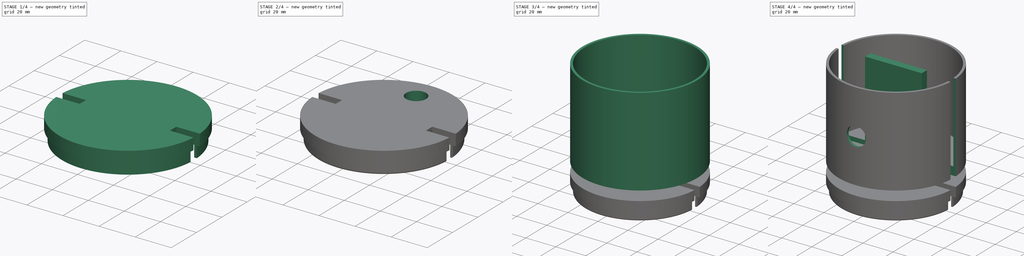
[diagram: build sequence overview — one tinted view per stage of 4, left to right]
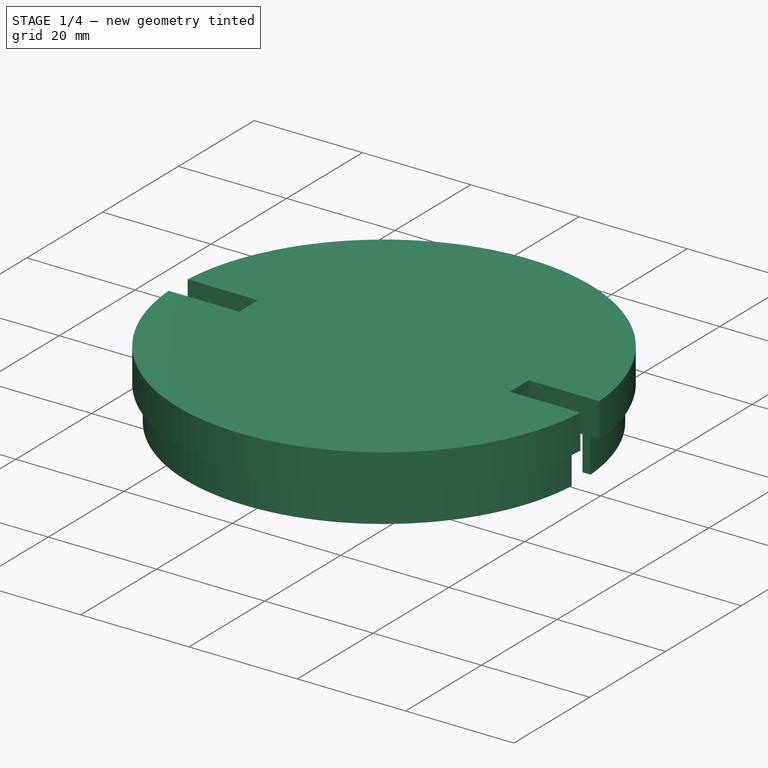
[diagram: stage 1 of 4 — iso view after this stage's code; geometry added in this stage tinted green]
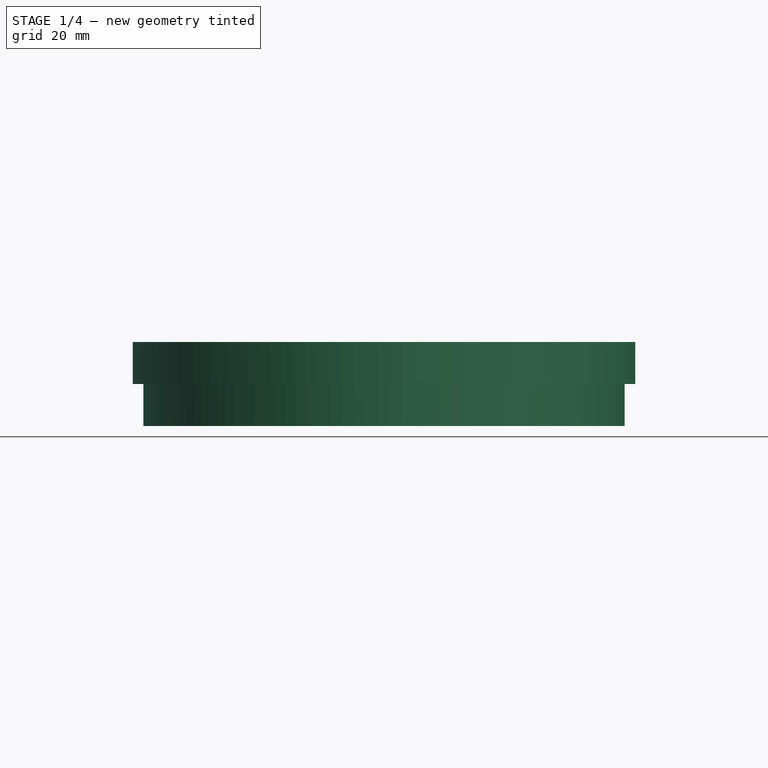
[diagram: stage 1 of 4 — front view after this stage's code; geometry added in this stage tinted green]
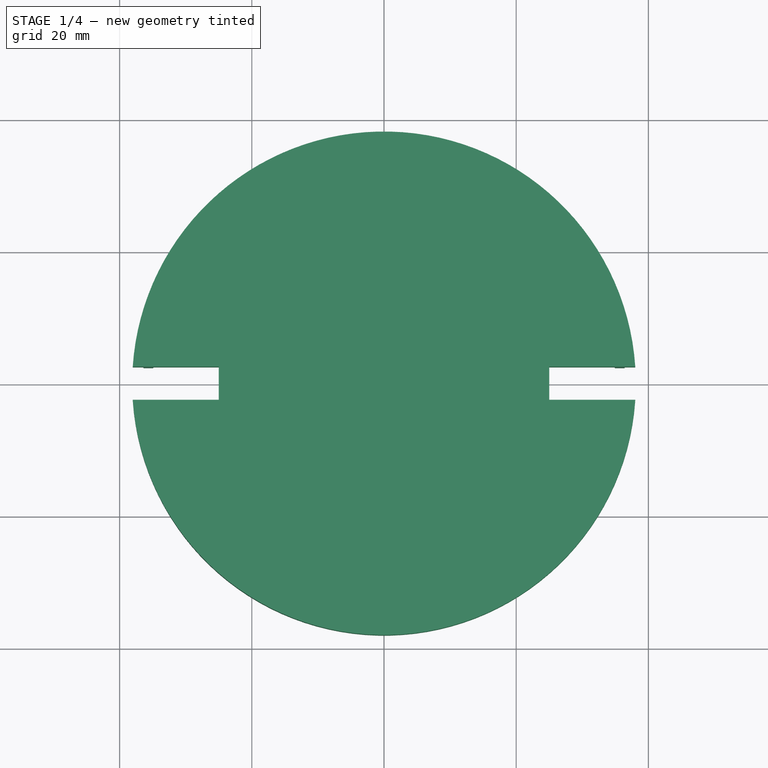
[diagram: stage 1 of 4 — top view after this stage's code; geometry added in this stage tinted green]
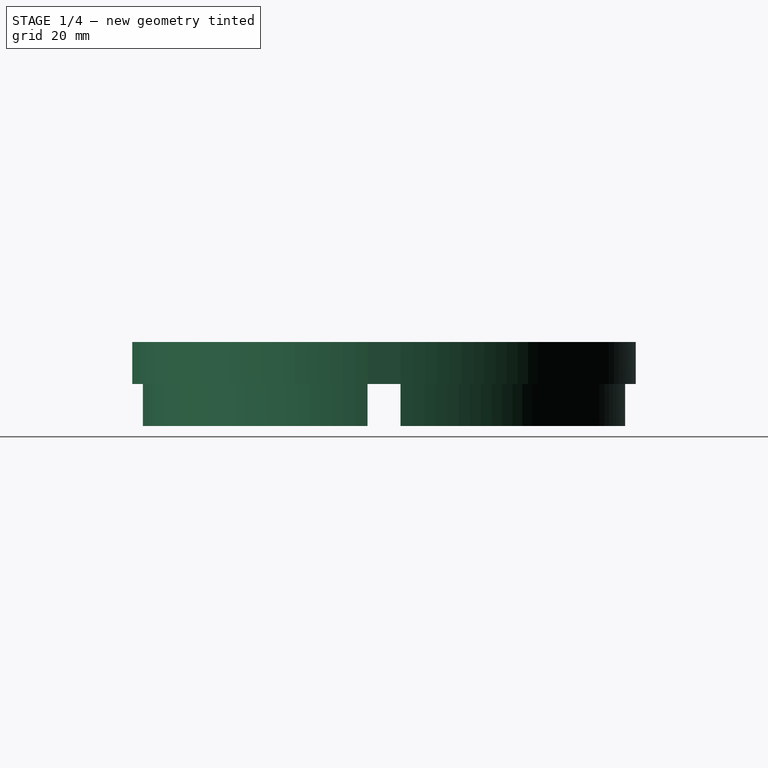
[diagram: stage 1 of 4 — right view after this stage's code; geometry added in this stage tinted green]
FCSTD DOCUMENT  (FreeCAD 0.19R)
Label: Degchi_Lamp_Enclosure
License: All rights reserved
LicenseURL: http://en.wikipedia.org/wiki/All_rights_reserved
objects: Sketcher::SketchObject×12, PartDesign::Pad×5, PartDesign::Pocket×5, PartDesign::Body×2, PartDesign::Fillet×2, PartDesign::Plane×1
note: 39 computed .brp shape members not serialized (recipe doc carries the construction recipe); baked Part::Feature solids carry a one-line shape summary decoded from their .brp

FEATURE [PartDesign::Body] Body  label="Degchi_Lamp_Electronics_Enclosure"
  Group = -> [Sketch,Pad,Sketch001,Pad001,Sketch002,Sketch004,Sketch005,Pocket,Sketch006,Pocket001,Sketch007,Pad002,DatumPlane,Sketch008,Pocket002]
  Origin = -> Origin
  Tip = -> Pocket002
FEATURE [Sketcher::SketchObject] Sketch009  label="Lid_Outline"
  FullyConstrained = true
  MapMode = 5
  Support = -> [XY_Plane001]
  sketch-geometry (1):
    g0: Circle CenterX=0 CenterY=0 CenterZ=0 NormalX=0 NormalY=0 NormalZ=1 AngleXU=0 Radius=38.1
  constraints (2):
    c: Coincident(g0,g-1)
    c: Diameter(g0) = 76.2
FEATURE [PartDesign::Pad] Pad003  label="Lid_Main"
  Direction = (1,1,1)
  Length = 6.35
  Length2 = 100
  Profile = -> Sketch009
  Type = 0
FEATURE [Sketcher::SketchObject] Sketch010  label="Lid_Inner"
  FullyConstrained = true
  MapMode = 5
  Placement = pos=(0,0,0) rot=(1,0,0;3.14159rad)
  Support = -> [Pad003]
  sketch-geometry (2):
    g0: Circle CenterX=0 CenterY=0 CenterZ=0 NormalX=0 NormalY=0 NormalZ=1 AngleXU=0 Radius=36.5
    g1: Circle CenterX=0 CenterY=0 CenterZ=0 NormalX=0 NormalY=0 NormalZ=1 AngleXU=0 Radius=35
  constraints (4):
    c: Coincident(g0,g-1)
    c: Diameter(g0) = 73
    c: Coincident(g1,g0)
    c: Diameter(g1) = 70
FEATURE [PartDesign::Pad] Pad004  label="Lid_Rim_Pad"
  BaseFeature = -> Pad003
  Direction = (1,1,1)
  Length = 6.35
  Length2 = 100
  Profile = -> Sketch010
  Type = 0
FEATURE [Sketcher::SketchObject] Sketch011  label="Cutout"
  ExternalGeometry = -> [Pad004]
  FullyConstrained = true
  MapMode = 5
  Placement = pos=(0,0,6.35) rot=(0,0,1;0rad)
  Support = -> [Pad004]
  sketch-geometry (8):
    g0: LineSegment StartX=-50 StartY=2.5 StartZ=0 EndX=-25 EndY=2.5 EndZ=0
    g1: LineSegment StartX=-25 StartY=2.5 StartZ=0 EndX=-25 EndY=-2.5 EndZ=0
    g2: LineSegment StartX=-25 StartY=-2.5 StartZ=0 EndX=-50 EndY=-2.5 EndZ=0
    g3: LineSegment StartX=-50 StartY=-2.5 StartZ=0 EndX=-50 EndY=2.5 EndZ=0
    g4: LineSegment StartX=50 StartY=2.5 StartZ=0 EndX=25 EndY=2.5 EndZ=0
    g5: LineSegment StartX=25 StartY=2.5 StartZ=0 EndX=25 EndY=-2.5 EndZ=0
    g6: LineSegment StartX=25 StartY=-2.5 StartZ=0 EndX=50 EndY=-2.5 EndZ=0
    g7: LineSegment StartX=50 StartY=-2.5 StartZ=0 EndX=50 EndY=2.5 EndZ=0
  constraints (24):
    c: Coincident(g0,g1)
    c: Coincident(g1,g2)
    c: Coincident(g2,g3)
    c: Coincident(g3,g0)
    c: Horizontal(g0)
    c: Horizontal(g2)
    c: Vertical(g1)
    c: Vertical(g3)
    c: Coincident(g4,g5)
    c: Coincident(g5,g6)
    c: Coincident(g6,g7)
    c: Coincident(g7,g4)
    c: Horizontal(g4)
    c: Horizontal(g6)
    c: Vertical(g5)
    c: Vertical(g7)
    c: DistanceY(g-1,g4) = 2.5
    c: DistanceY(g5,g-1) = 2.5
    c: DistanceY(g1,g-1) = 2.5
    c: DistanceY(g-1,g0) = 2.5
    c: DistanceX(g0,g-1) = 25
    c: DistanceX(g-1,g4) = 25
    c: DistanceX(g-1,g6) = 50
    c: DistanceX(g2,g-1) = 50
FEATURE [PartDesign::Pocket] Pocket003  label="Cutout_Pocket"
  BaseFeature = -> Pad004
  Length = 12.7
  Length2 = 100
  Profile = -> Sketch011
  Type = 0
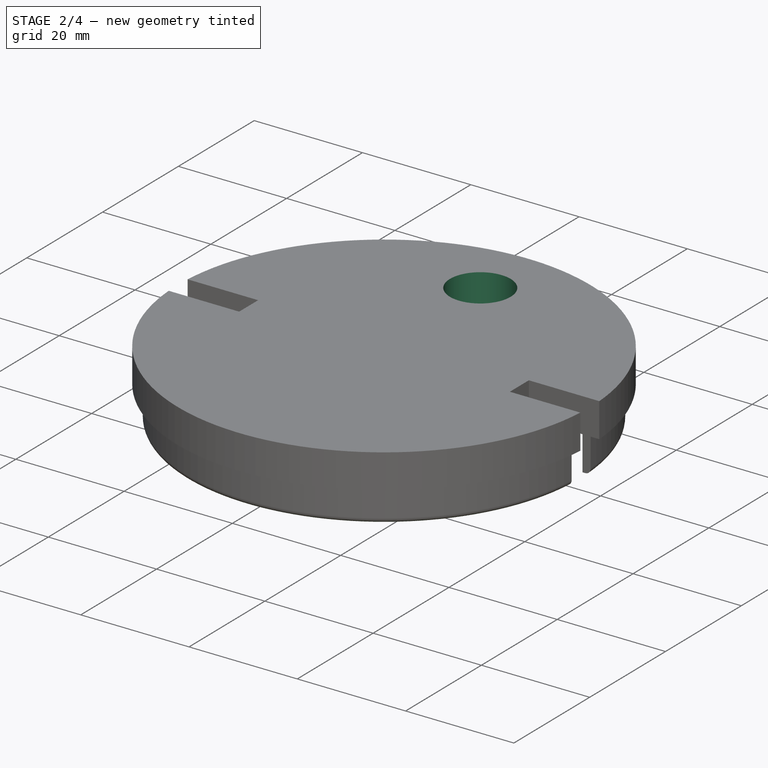
[diagram: stage 2 of 4 — iso view after this stage's code; geometry added in this stage tinted green]
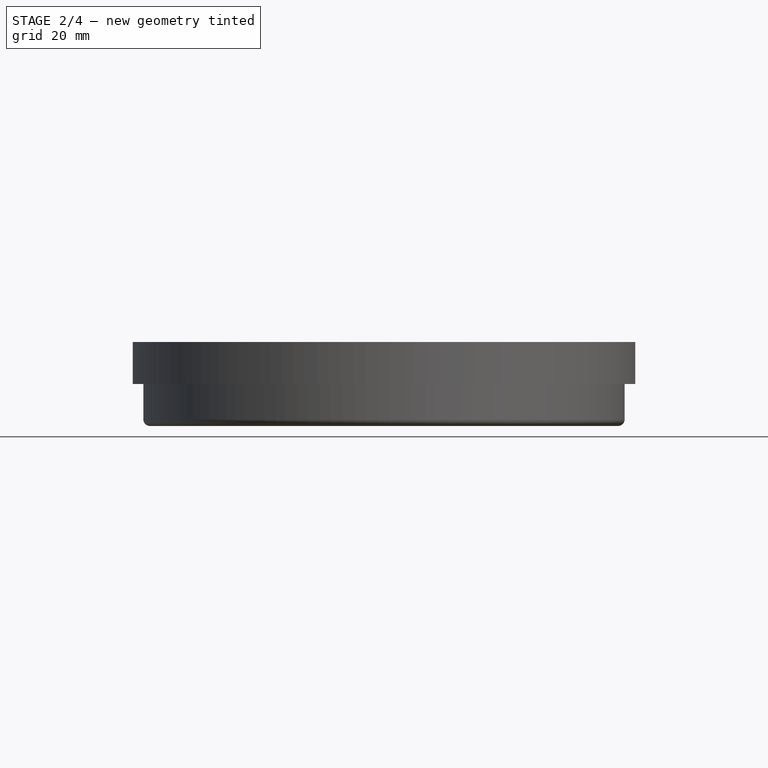
[diagram: stage 2 of 4 — front view after this stage's code; geometry added in this stage tinted green]
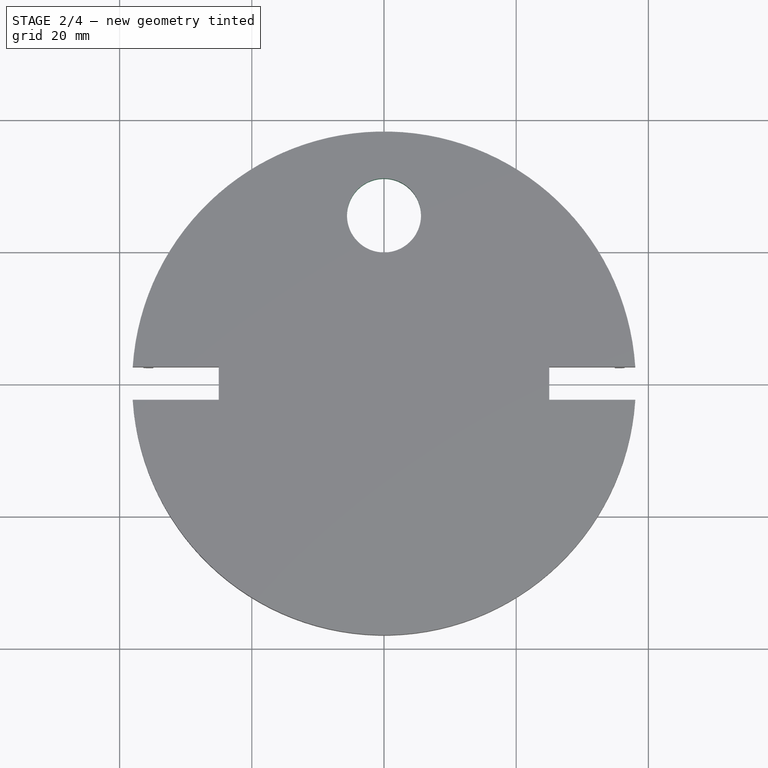
[diagram: stage 2 of 4 — top view after this stage's code; geometry added in this stage tinted green]
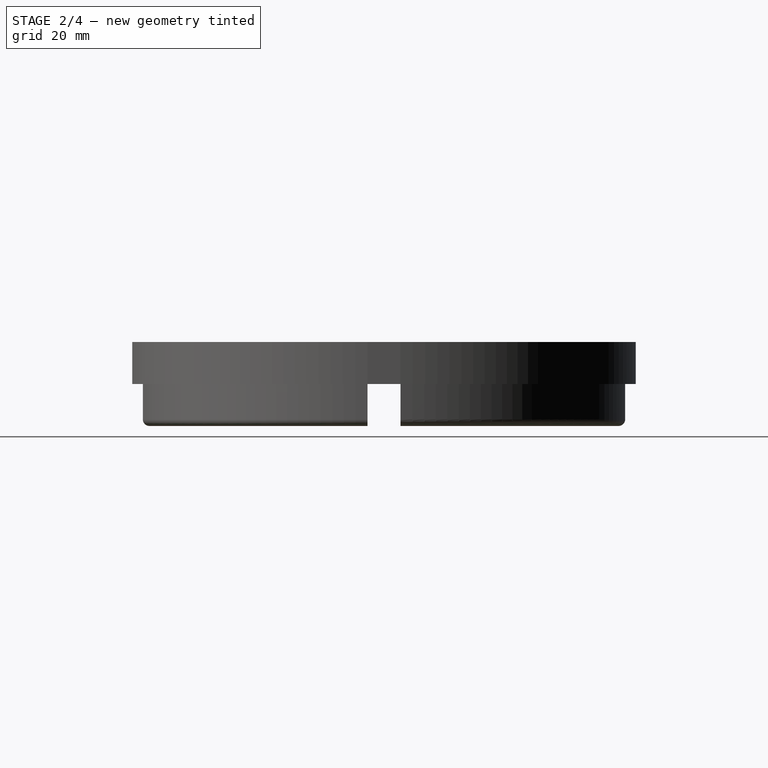
[diagram: stage 2 of 4 — right view after this stage's code; geometry added in this stage tinted green]
FEATURE [Sketcher::SketchObject] Sketch012  label="Power_connector_Cutout"
  ExternalGeometry = -> [Pocket003]
  FullyConstrained = true
  MapMode = 5
  Placement = pos=(0,0,6.35) rot=(0,0,1;0rad)
  Support = -> [Pocket003]
  expr: Constraints[2] = 76.2 / 2 - 0.5 * 25.4
  sketch-geometry (1):
    g0: Circle CenterX=0 CenterY=25.4 CenterZ=0 NormalX=0 NormalY=0 NormalZ=1 AngleXU=0 Radius=5.6
  constraints (3):
    c: Diameter(g0) = 11.2
    c: Vertical(g0,g-1)
    c: DistanceY(g-1,g0) = 25.4
FEATURE [PartDesign::Pocket] Pocket004  label="Power_Connector_Cutout"
  BaseFeature = -> Pocket003
  Length = 6.35
  Length2 = 100
  Profile = -> Sketch012
  Type = 0
FEATURE [PartDesign::Fillet] Fillet  label="Lid_Fillet"
  Base = -> Pocket004 [Edge26,Edge51]
  BaseFeature = -> Pocket004
  Radius = 1
  SupportTransform = false
  expr: Radius = 1
FEATURE [PartDesign::Fillet] Fillet001  label="Power_Connector_Fillet"
  Base = -> Fillet [Edge25]
  BaseFeature = -> Fillet
  Radius = 1
  SupportTransform = false
FEATURE [PartDesign::Body] Body001  label="Degchi_Lamp_Electronics_Cover"
  Group = -> [Sketch009,Pad003,Sketch010,Pad004,Sketch011,Pocket003,Sketch012,Pocket004,Fillet,Fillet001]
  Origin = -> Origin001
  Placement = pos=(0,0,100) rot=(0,0,1;0rad)
  Tip = -> Fillet001
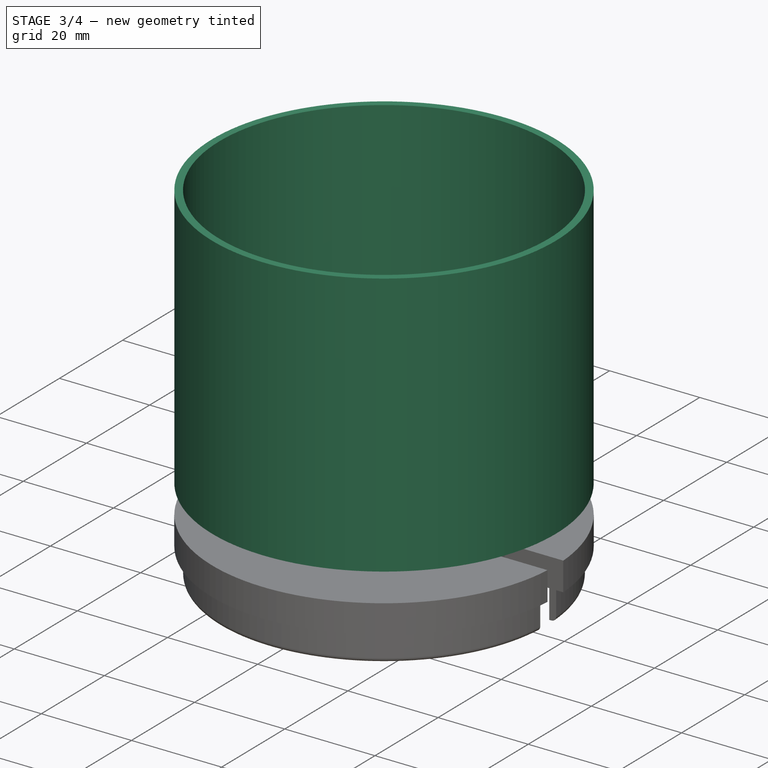
[diagram: stage 3 of 4 — iso view after this stage's code; geometry added in this stage tinted green]
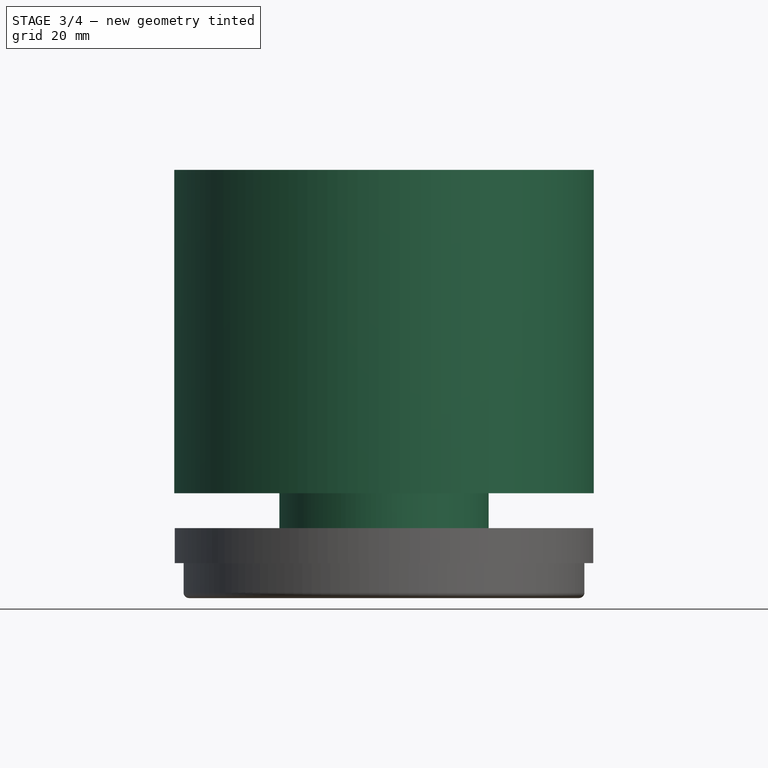
[diagram: stage 3 of 4 — front view after this stage's code; geometry added in this stage tinted green]
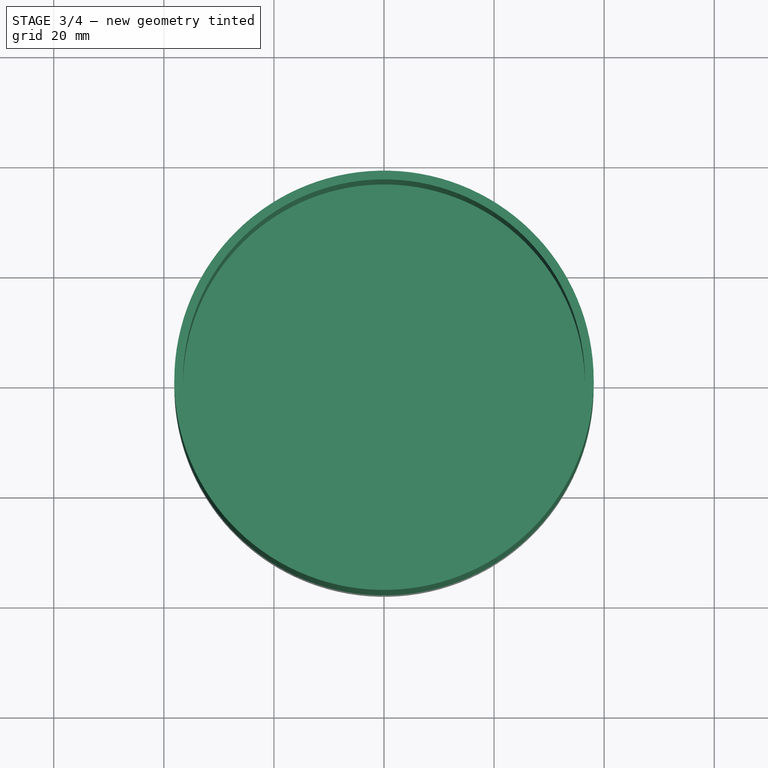
[diagram: stage 3 of 4 — top view after this stage's code; geometry added in this stage tinted green]
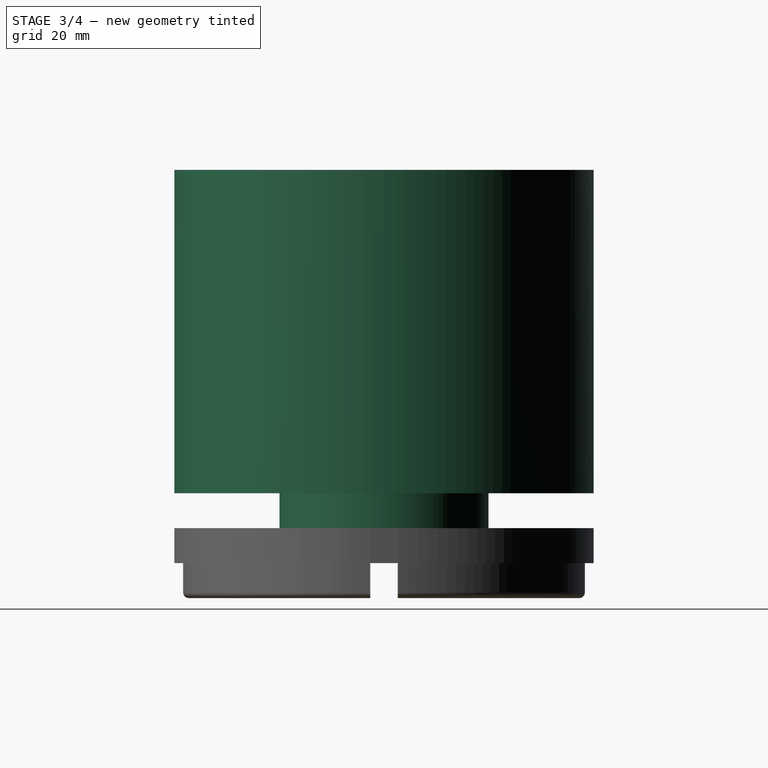
[diagram: stage 3 of 4 — right view after this stage's code; geometry added in this stage tinted green]
FEATURE [Sketcher::SketchObject] Sketch
  FullyConstrained = true
  MapMode = 5
  Support = -> [XY_Plane]
  sketch-geometry (1):
    g0: Circle CenterX=0 CenterY=0 CenterZ=0 NormalX=0 NormalY=0 NormalZ=1 AngleXU=0 Radius=19
  constraints (2):
    c: Coincident(g0,g-1)
    c: Diameter(g0) = 38
FEATURE [PartDesign::Pad] Pad
  Direction = (1,1,1)
  Length = 12.7
  Length2 = 100
  Profile = -> Sketch
  Type = 0
FEATURE [Sketcher::SketchObject] Sketch001
  FullyConstrained = true
  MapMode = 5
  Placement = pos=(0,0,12.7) rot=(0,0,1;0rad)
  Support = -> [Pad]
  sketch-geometry (1):
    g0: Circle CenterX=0 CenterY=0 CenterZ=0 NormalX=0 NormalY=0 NormalZ=1 AngleXU=0 Radius=38.1
  constraints (2):
    c: Coincident(g-1,g0)
    c: Diameter(g0) = 76.2
FEATURE [PartDesign::Pad] Pad001
  BaseFeature = -> Pad
  Direction = (1,1,1)
  Length = 58.738
  Length2 = 100
  Profile = -> Sketch001
  Type = 0
FEATURE [Sketcher::SketchObject] Sketch002
  FullyConstrained = true
  MapMode = 5
  Placement = pos=(0,0,12.7) rot=(1,0,0;3.14159rad)
  Support = -> [Pad001]
FEATURE [Sketcher::SketchObject] Sketch004
  FullyConstrained = true
  MapMode = 5
  Placement = pos=(0,0,71.438) rot=(0,0,1;0rad)
  Support = -> [Pad001]
FEATURE [Sketcher::SketchObject] Sketch005
  ExternalGeometry = -> [Pad001]
  FullyConstrained = true
  MapMode = 5
  Placement = pos=(0,0,71.438) rot=(0,0,1;0rad)
  Support = -> [Pad001]
  sketch-geometry (1):
    g0: Circle CenterX=0 CenterY=0 CenterZ=0 NormalX=0 NormalY=0 NormalZ=1 AngleXU=0 Radius=36.5125
  constraints (2):
    c: Coincident(g0,g-1)
    c: Diameter(g0) = 73.025
FEATURE [PartDesign::Pocket] Pocket
  BaseFeature = -> Pad001
  Length = 53.15
  Length2 = 100
  Profile = -> Sketch005
  Type = 0
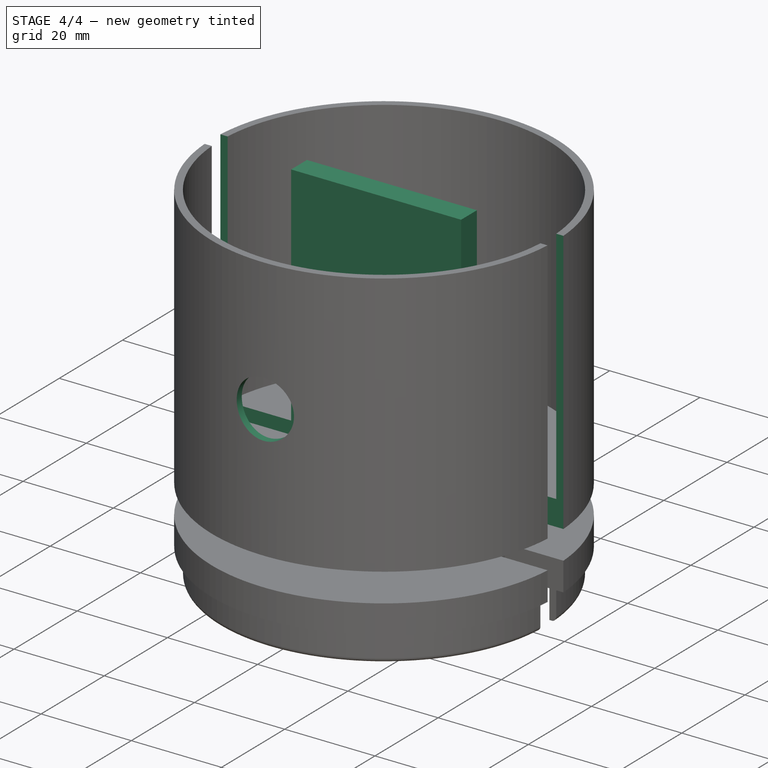
[diagram: stage 4 of 4 — iso view after this stage's code; geometry added in this stage tinted green]
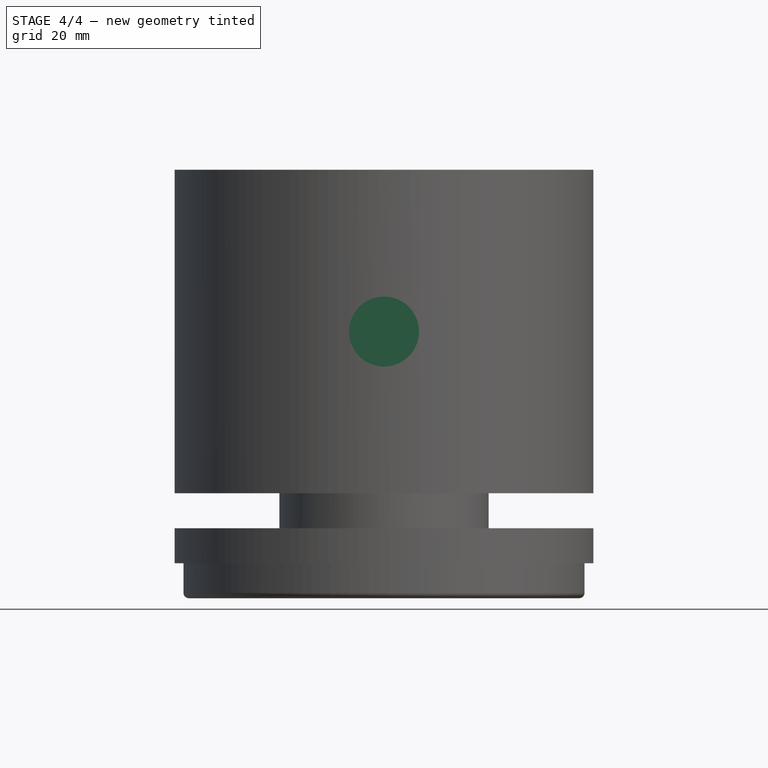
[diagram: stage 4 of 4 — front view after this stage's code; geometry added in this stage tinted green]
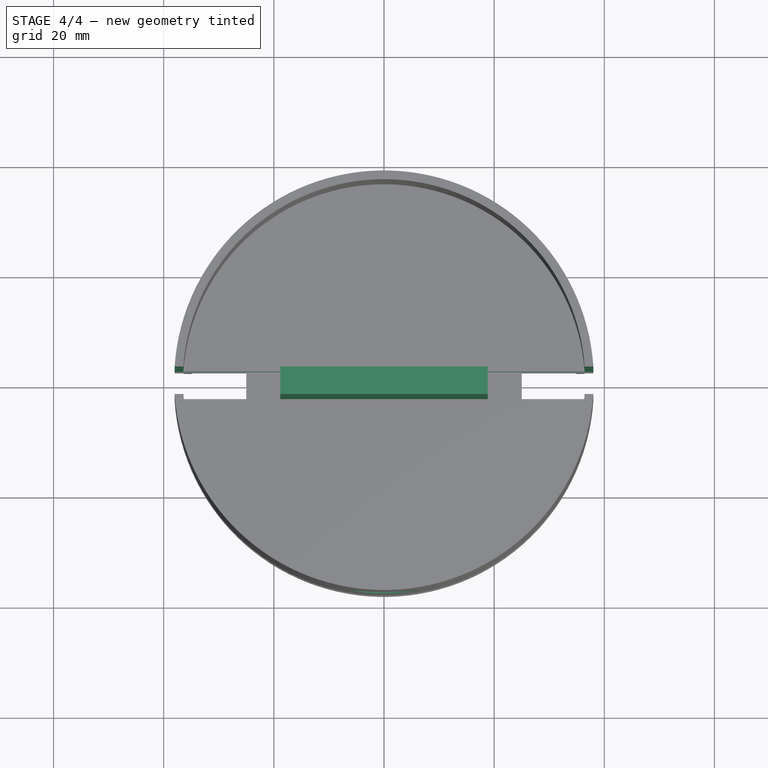
[diagram: stage 4 of 4 — top view after this stage's code; geometry added in this stage tinted green]
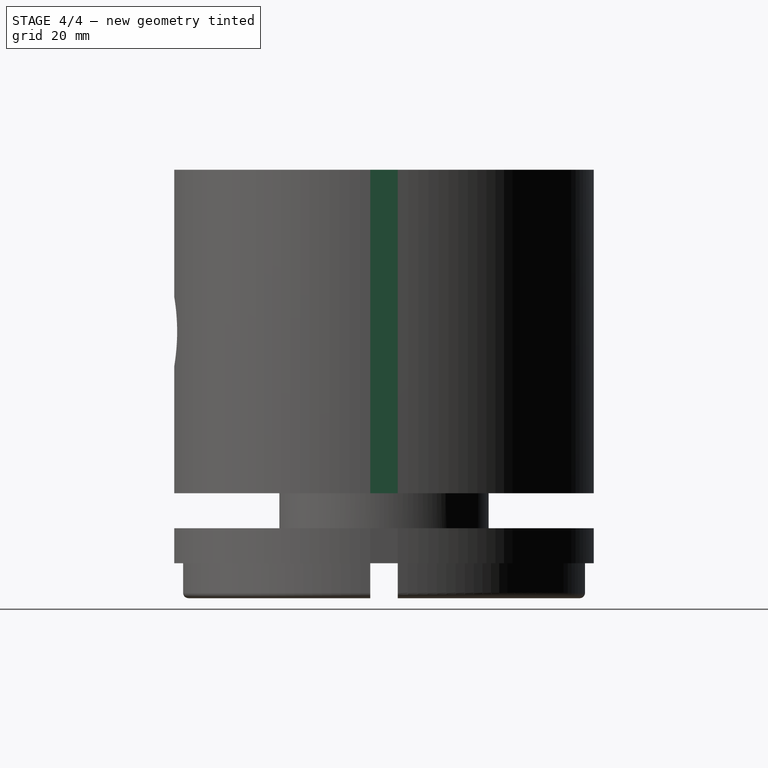
[diagram: stage 4 of 4 — right view after this stage's code; geometry added in this stage tinted green]
FEATURE [Sketcher::SketchObject] Sketch006  label="Side_Cuts"
  ExternalGeometry = -> [Pocket]
  FullyConstrained = true
  MapMode = 5
  Placement = pos=(0,0,12.7) rot=(1,0,0;3.14159rad)
  Support = -> [Pocket]
  sketch-geometry (8):
    g0: LineSegment StartX=18.8348 StartY=2.5 StartZ=0 EndX=44.2348 EndY=2.5 EndZ=0
    g1: LineSegment StartX=44.2348 StartY=2.5 StartZ=0 EndX=44.2348 EndY=-2.5 EndZ=0
    g2: LineSegment StartX=44.2348 StartY=-2.5 StartZ=0 EndX=18.8348 EndY=-2.5 EndZ=0
    g3: LineSegment StartX=18.8348 StartY=-2.5 StartZ=0 EndX=18.8348 EndY=2.5 EndZ=0
    g4: LineSegment StartX=-18.8348 StartY=2.5 StartZ=0 EndX=-44.2348 EndY=2.5 EndZ=0
    g5: LineSegment StartX=-44.2348 StartY=2.5 StartZ=0 EndX=-44.2348 EndY=-2.5 EndZ=0
    g6: LineSegment StartX=-44.2348 StartY=-2.5 StartZ=0 EndX=-18.8348 EndY=-2.5 EndZ=0
    g7: LineSegment StartX=-18.8348 StartY=-2.5 StartZ=0 EndX=-18.8348 EndY=2.5 EndZ=0
  constraints (24):
    c: Coincident(g0,g1)
    c: Coincident(g1,g2)
    c: Coincident(g2,g3)
    c: Coincident(g3,g0)
    c: Horizontal(g0)
    c: Horizontal(g2)
    c: Vertical(g1)
    c: Vertical(g3)
    c: Coincident(g4,g5)
    c: Coincident(g5,g6)
    c: Coincident(g6,g7)
    c: Coincident(g7,g4)
    c: Horizontal(g4)
    c: Horizontal(g6)
    c: Vertical(g5)
    c: Vertical(g7)
    c: Equal(g5,g1)
    c: PointOnObject(g0,g-4)
    c: PointOnObject(g2,g-4)
    c: PointOnObject(g4,g-4)
    c: PointOnObject(g6,g-4)
    c: DistanceY(g-1,g4) = 2.5
    c: Equal(g4,g0)
    c: DistanceX(g4,g4) = 25.4
FEATURE [PartDesign::Pocket] Pocket001  label="Side_Cuts_Pocket"
  BaseFeature = -> Pocket
  Length = 60
  Length2 = 100
  Profile = -> Sketch006
  Type = 0
FEATURE [Sketcher::SketchObject] Sketch007  label="Center_Electronics_Support"
  ExternalGeometry = -> [Pocket001]
  FullyConstrained = true
  MapMode = 5
  Placement = pos=(0,0,18.288) rot=(0,0,1;0rad)
  Support = -> [Pocket001]
  sketch-geometry (4):
    g0: LineSegment StartX=-18.8348 StartY=2.5 StartZ=0 EndX=18.8348 EndY=2.5 EndZ=0
    g1: LineSegment StartX=18.8348 StartY=2.5 StartZ=0 EndX=18.8348 EndY=-2.5 EndZ=0
    g2: LineSegment StartX=18.8348 StartY=-2.5 StartZ=0 EndX=-18.8348 EndY=-2.5 EndZ=0
    g3: LineSegment StartX=-18.8348 StartY=-2.5 StartZ=0 EndX=-18.8348 EndY=2.5 EndZ=0
  constraints (9):
    c: Coincident(g0,g1)
    c: Coincident(g1,g2)
    c: Coincident(g2,g3)
    c: Coincident(g3,g0)
    c: Horizontal(g2)
    c: Vertical(g1)
    c: Coincident(g-4,g0)
    c: Coincident(g-4,g2)
    c: Coincident(g0,g-3)
FEATURE [PartDesign::Pad] Pad002  label="Center_Electronics_Support_Pad"
  BaseFeature = -> Pocket001
  Direction = (1,1,1)
  Length = 53.15
  Length2 = 100
  Profile = -> Sketch007
  Type = 0
FEATURE [PartDesign::Plane] DatumPlane
  Length = 113.564
  MapMode = 45
  Placement = pos=(-4.4e-15,-25.2588,42.069) rot=(-0.57735,-0.57735,-0.57735;2.0944rad)
  ResizeMode = 0
  Support = -> [Pad002]
  Width = 93.1621
FEATURE [Sketcher::SketchObject] Sketch008  label="Main_Connection_Access_Hole"
  ExternalGeometry = -> [Pad002]
  FullyConstrained = true
  MapMode = 5
  Placement = pos=(-4.4e-15,-25.2588,42.069) rot=(-0.57735,-0.57735,-0.57735;2.0944rad)
  Support = -> [DatumPlane]
  sketch-geometry (1):
    g0: Circle CenterX=0 CenterY=0 CenterZ=0 NormalX=0 NormalY=0 NormalZ=1 AngleXU=0 Radius=6.35
  constraints (3):
    c: Diameter(g0) = 12.7
    c: PointOnObject(g0,g-1)
    c: PointOnObject(g0,g-2)
FEATURE [PartDesign::Pocket] Pocket002  label="Main_Connection_Access_Hole_Pocket"
  BaseFeature = -> Pad002
  Length = 50
  Length2 = 100
  Profile = -> Sketch008
  Type = 0
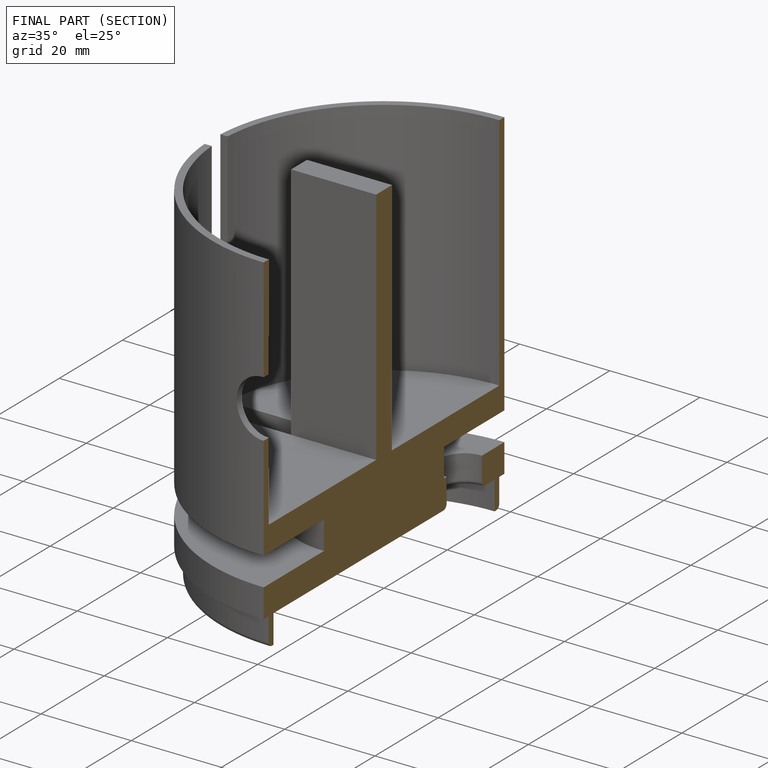
[diagram: finished part — half-section view (interior)]
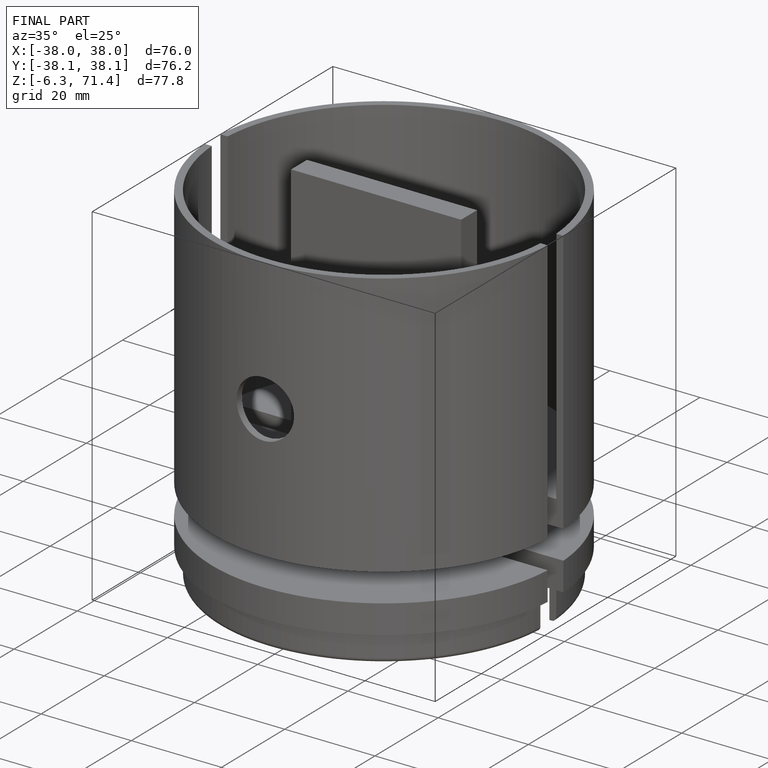
[diagram: finished part — iso view with bounding-box wireframe]
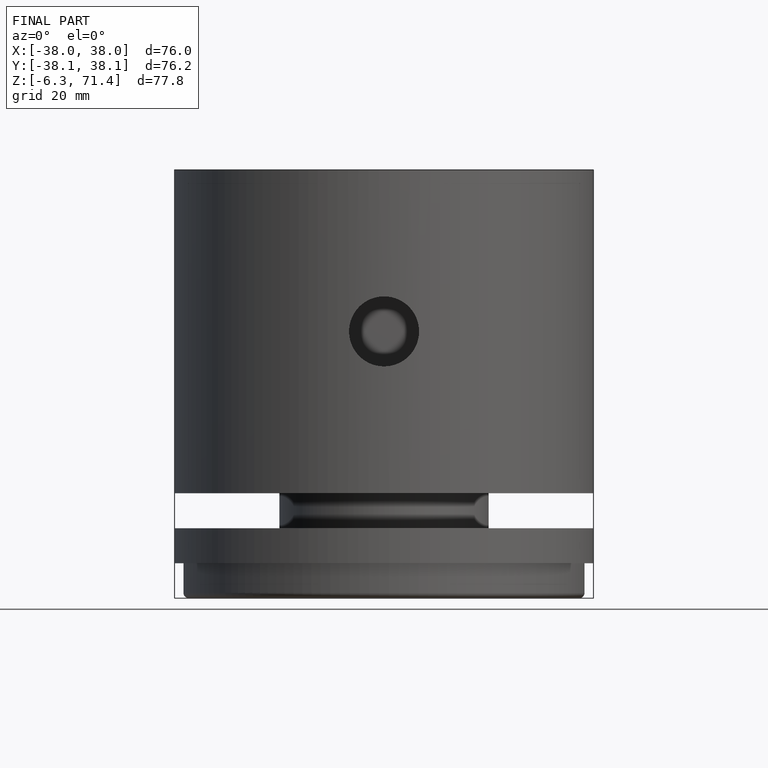
[diagram: finished part — front view with bounding-box wireframe]
